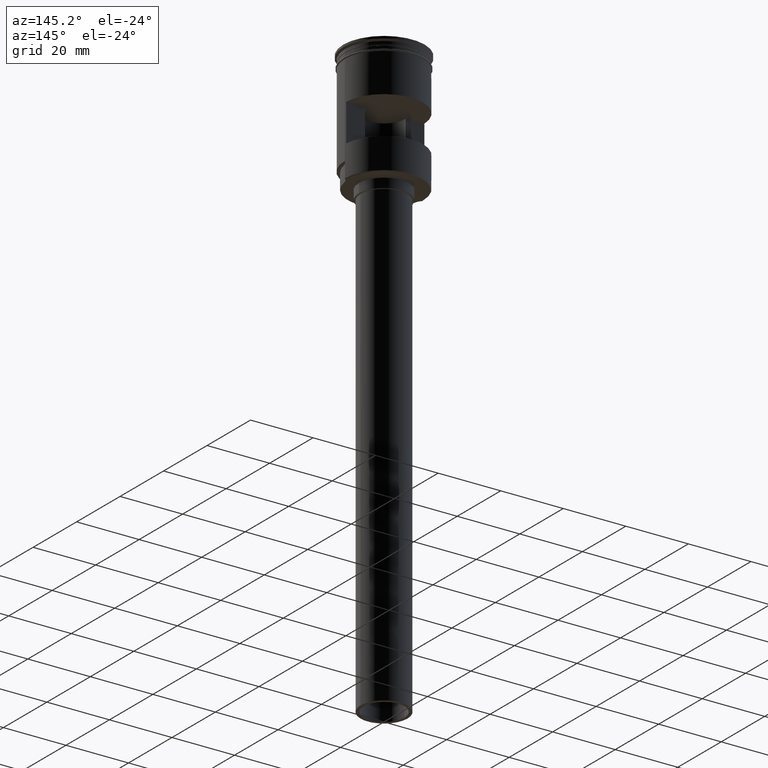
[diagram: clean part render]
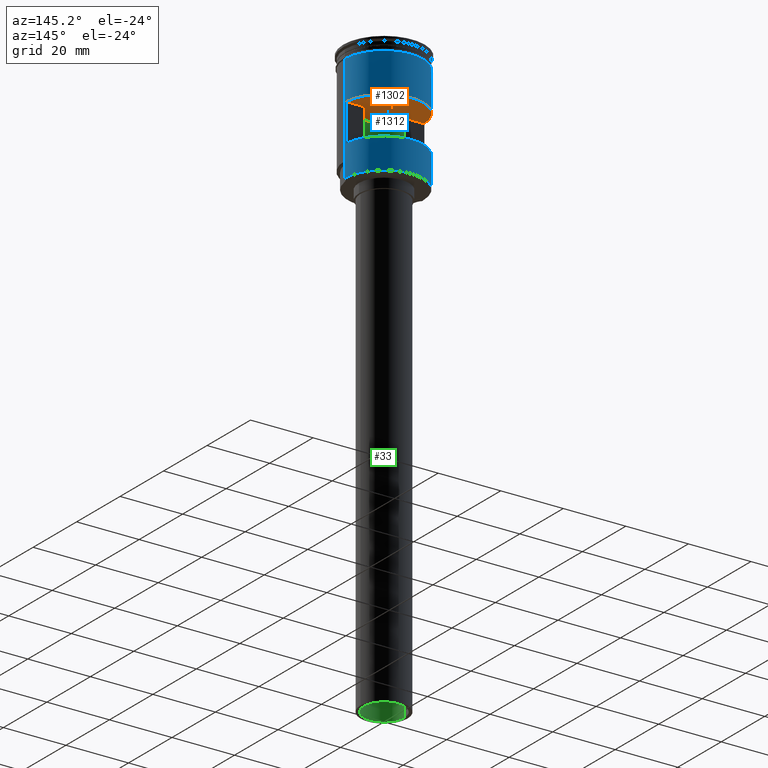
[diagram: same view with three faces highlighted in distinct colors, each labeled with its STEP entity id]
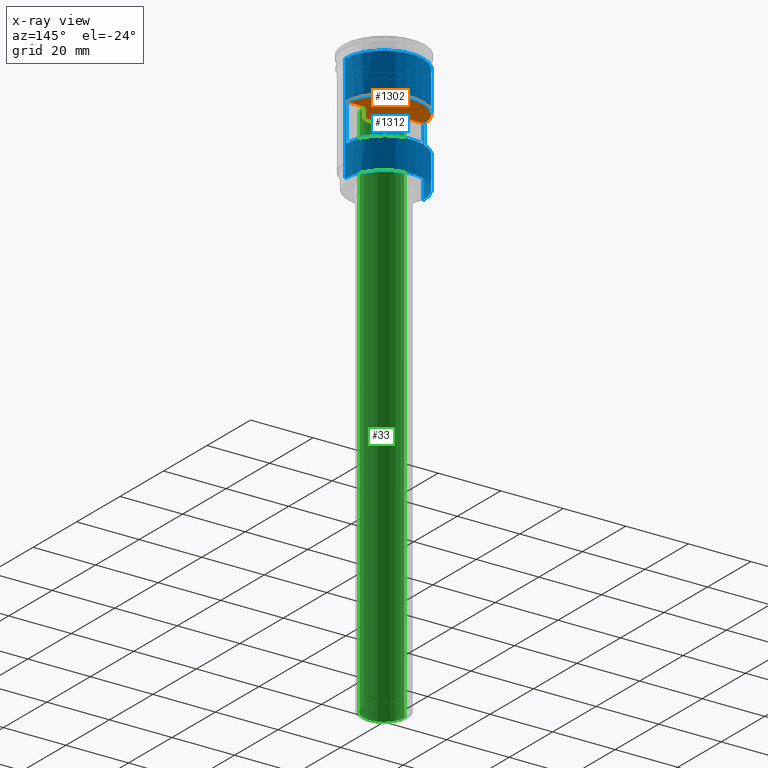
[diagram: x-ray of the same camera — body ghosted, the three highlighted faces saturated]
A machine part, auxiliary view with three faces highlighted in distinct colors.
The next image is the same camera in x-ray (body ghosted, the three faces saturated) — at least one of them is partly hidden behind the body in this view.
Their STEP definitions:

[orange] entity #1302 — the highlighted planar face has unit normal (0, -0, 1).
#40 = AXIS2_PLACEMENT_3D ( 'NONE', #961, #363, #1484 ) ;
#127 = VERTEX_POINT ( 'NONE', #1060 ) ;
#145 = VERTEX_POINT ( 'NONE', #1274 ) ;
#147 = DIRECTION ( 'NONE',  ( 1.000000000000000000, 0.000000000000000000, 0.000000000000000000 ) ) ;
#155 = DIRECTION ( 'NONE',  ( 1.000000000000000000, -0.000000000000000000, -0.000000000000000000 ) ) ;
#172 = LINE ( 'NONE', #901, #1307 ) ;
#236 = CARTESIAN_POINT ( 'NONE',  ( -13.00000000000000178, 0.6000000000000003109, -16.50000000000000000 ) ) ;
#240 = CARTESIAN_POINT ( 'NONE',  ( 0.000000000000000000, 0.000000000000000000, -16.50000000000000000 ) ) ;
#246 = VERTEX_POINT ( 'NONE', #909 ) ;
#276 = CARTESIAN_POINT ( 'NONE',  ( 0.000000000000000000, 0.000000000000000000, -16.50000000000000000 ) ) ;
#363 = DIRECTION ( 'NONE',  ( -0.000000000000000000, 0.000000000000000000, -1.000000000000000000 ) ) ;
#377 = AXIS2_PLACEMENT_3D ( 'NONE', #1381, #1471, #1012 ) ;
#393 = DIRECTION ( 'NONE',  ( 1.000000000000000000, 0.000000000000000000, 0.000000000000000000 ) ) ;
#396 = FACE_OUTER_BOUND ( 'NONE', #1223, .T. ) ;
#476 = CIRCLE ( 'NONE', #1494, 6.500000000000000888 ) ;
#477 = ORIENTED_EDGE ( 'NONE', *, *, #704, .T. ) ;
#503 = CARTESIAN_POINT ( 'NONE',  ( -6.500000000000000888, 0.000000000000000000, -16.50000000000000000 ) ) ;
#525 = ORIENTED_EDGE ( 'NONE', *, *, #806, .F. ) ;
#533 = CIRCLE ( 'NONE', #585, 6.500000000000000888 ) ;
#585 = AXIS2_PLACEMENT_3D ( 'NONE', #276, #1289, #393 ) ;
#629 = PLANE ( 'NONE',  #377 ) ;
#630 = VERTEX_POINT ( 'NONE', #1003 ) ;
#655 = VERTEX_POINT ( 'NONE', #503 ) ;
#663 = ORIENTED_EDGE ( 'NONE', *, *, #923, .T. ) ;
#681 = CIRCLE ( 'NONE', #1021, 12.49999999999999645 ) ;
#704 = EDGE_CURVE ( 'NONE', #655, #145, #1594, .T. ) ;
#729 = CARTESIAN_POINT ( 'NONE',  ( 6.472248450113761820, 0.6000000000000003109, -16.50000000000000000 ) ) ;
#750 = EDGE_CURVE ( 'NONE', #127, #145, #1346, .T. ) ;
#776 = EDGE_CURVE ( 'NONE', #1137, #246, #533, .T. ) ;
#806 = EDGE_CURVE ( 'NONE', #1137, #630, #172, .T. ) ;
#814 = ORIENTED_EDGE ( 'NONE', *, *, #750, .F. ) ;
#824 = DIRECTION ( 'NONE',  ( -0.000000000000000000, 0.000000000000000000, -1.000000000000000000 ) ) ;
#890 = DIRECTION ( 'NONE',  ( -0.000000000000000000, 0.000000000000000000, -1.000000000000000000 ) ) ;
#901 = CARTESIAN_POINT ( 'NONE',  ( -13.00000000000000178, 0.6000000000000003109, -16.50000000000000000 ) ) ;
#909 = CARTESIAN_POINT ( 'NONE',  ( 6.500000000000000888, 7.960204194457794491E-16, -16.50000000000000000 ) ) ;
#923 = EDGE_CURVE ( 'NONE', #246, #655, #476, .T. ) ;
#961 = CARTESIAN_POINT ( 'NONE',  ( 0.000000000000000000, 0.000000000000000000, -16.50000000000000000 ) ) ;
#1003 = CARTESIAN_POINT ( 'NONE',  ( 12.48559169603106689, 0.6000000000000003109, -16.50000000000000000 ) ) ;
#1012 = DIRECTION ( 'NONE',  ( 1.000000000000000000, 0.000000000000000000, -0.000000000000000000 ) ) ;
#1021 = AXIS2_PLACEMENT_3D ( 'NONE', #240, #890, #147 ) ;
#1024 = VECTOR ( 'NONE', #1598, 1000.000000000000000 ) ;
#1060 = CARTESIAN_POINT ( 'NONE',  ( -12.48559169603106689, 0.6000000000000003109, -16.50000000000000000 ) ) ;
#1068 = DIRECTION ( 'NONE',  ( 1.000000000000000000, 0.000000000000000000, 0.000000000000000000 ) ) ;
#1137 = VERTEX_POINT ( 'NONE', #729 ) ;
#1173 = ORIENTED_EDGE ( 'NONE', *, *, #1374, .T. ) ;
#1223 = EDGE_LOOP ( 'NONE', ( #525, #1482, #663, #477, #814, #1173 ) ) ;
#1274 = CARTESIAN_POINT ( 'NONE',  ( -6.472248450113763596, 0.6000000000000004219, -16.50000000000000000 ) ) ;
#1289 = DIRECTION ( 'NONE',  ( -0.000000000000000000, 0.000000000000000000, -1.000000000000000000 ) ) ;
#1302 = ADVANCED_FACE ( 'NONE', ( #396 ), #629, .F. ) ;
#1307 = VECTOR ( 'NONE', #155, 1000.000000000000000 ) ;
#1346 = LINE ( 'NONE', #236, #1024 ) ;
#1374 = EDGE_CURVE ( 'NONE', #127, #630, #681, .T. ) ;
#1381 = CARTESIAN_POINT ( 'NONE',  ( -13.00000000000000178, 0.6000000000000003109, -16.50000000000000000 ) ) ;
#1413 = CARTESIAN_POINT ( 'NONE',  ( 0.000000000000000000, 0.000000000000000000, -16.50000000000000000 ) ) ;
#1471 = DIRECTION ( 'NONE',  ( 0.000000000000000000, -0.000000000000000000, 1.000000000000000000 ) ) ;
#1482 = ORIENTED_EDGE ( 'NONE', *, *, #776, .T. ) ;
#1484 = DIRECTION ( 'NONE',  ( 1.000000000000000000, 0.000000000000000000, 0.000000000000000000 ) ) ;
#1494 = AXIS2_PLACEMENT_3D ( 'NONE', #1413, #824, #1068 ) ;
#1594 = CIRCLE ( 'NONE', #40, 6.500000000000000888 ) ;
#1598 = DIRECTION ( 'NONE',  ( 1.000000000000000000, -0.000000000000000000, -0.000000000000000000 ) ) ;

[blue] entity #1312 — the highlighted cylindrical surface (partial cylindrical patch) has radius 12.5 mm, axis along (-0, -0, 1).
#11 = ORIENTED_EDGE ( 'NONE', *, *, #420, .T. ) ;
#12 = CARTESIAN_POINT ( 'NONE',  ( 0.000000000000000000, 0.000000000000000000, -38.29999999999996874 ) ) ;
#25 = LINE ( 'NONE', #745, #582 ) ;
#35 = CARTESIAN_POINT ( 'NONE',  ( 12.49999999999999289, 1.530808498934190732E-15, -38.50000000000000000 ) ) ;
#36 = VECTOR ( 'NONE', #1071, 1000.000000000000000 ) ;
#42 = ORIENTED_EDGE ( 'NONE', *, *, #1075, .F. ) ;
#72 = VERTEX_POINT ( 'NONE', #1444 ) ;
#127 = VERTEX_POINT ( 'NONE', #1060 ) ;
#147 = DIRECTION ( 'NONE',  ( 1.000000000000000000, 0.000000000000000000, 0.000000000000000000 ) ) ;
#200 = VERTEX_POINT ( 'NONE', #1540 ) ;
#240 = CARTESIAN_POINT ( 'NONE',  ( 0.000000000000000000, 0.000000000000000000, -16.50000000000000000 ) ) ;
#252 = ORIENTED_EDGE ( 'NONE', *, *, #1386, .F. ) ;
#265 = CYLINDRICAL_SURFACE ( 'NONE', #656, 12.49999999999999645 ) ;
#270 = CARTESIAN_POINT ( 'NONE',  ( 12.49999999999999289, 1.530808498934190732E-15, -38.29999999999996874 ) ) ;
#275 = EDGE_CURVE ( 'NONE', #1036, #742, #1562, .T. ) ;
#337 = CARTESIAN_POINT ( 'NONE',  ( 12.48559169603106689, 0.6000000000000003109, -28.49999999999999645 ) ) ;
#341 = LINE ( 'NONE', #576, #36 ) ;
#345 = CARTESIAN_POINT ( 'NONE',  ( -12.48559169603106689, 0.6000000000000003109, 0.000000000000000000 ) ) ;
#355 = ORIENTED_EDGE ( 'NONE', *, *, #1374, .F. ) ;
#361 = LINE ( 'NONE', #345, #1587 ) ;
#362 = ORIENTED_EDGE ( 'NONE', *, *, #1591, .F. ) ;
#371 = CARTESIAN_POINT ( 'NONE',  ( -12.49999999999999289, 0.000000000000000000, -38.29999999999996874 ) ) ;
#420 = EDGE_CURVE ( 'NONE', #483, #574, #1565, .T. ) ;
#425 = VECTOR ( 'NONE', #1396, 1000.000000000000000 ) ;
#439 = VERTEX_POINT ( 'NONE', #620 ) ;
#453 = ORIENTED_EDGE ( 'NONE', *, *, #1503, .T. ) ;
#483 = VERTEX_POINT ( 'NONE', #270 ) ;
#574 = VERTEX_POINT ( 'NONE', #371 ) ;
#576 = CARTESIAN_POINT ( 'NONE',  ( 12.48559169603106689, 0.6000000000000003109, 0.000000000000000000 ) ) ;
#580 = DIRECTION ( 'NONE',  ( 1.000000000000000000, 0.000000000000000000, 0.000000000000000000 ) ) ;
#582 = VECTOR ( 'NONE', #1109, 1000.000000000000000 ) ;
#588 = CARTESIAN_POINT ( 'NONE',  ( 0.000000000000000000, 0.000000000000000000, -28.49999999999999645 ) ) ;
#620 = CARTESIAN_POINT ( 'NONE',  ( -12.50000000000000000, 1.530808498934191521E-15, -3.999999999999996447 ) ) ;
#630 = VERTEX_POINT ( 'NONE', #1003 ) ;
#634 = AXIS2_PLACEMENT_3D ( 'NONE', #588, #703, #1095 ) ;
#647 = DIRECTION ( 'NONE',  ( 1.000000000000000000, 0.000000000000000000, 0.000000000000000000 ) ) ;
#650 = EDGE_LOOP ( 'NONE', ( #362, #355, #42, #1078 ) ) ;
#656 = AXIS2_PLACEMENT_3D ( 'NONE', #1368, #1480, #647 ) ;
#673 = DIRECTION ( 'NONE',  ( -0.000000000000000000, -0.000000000000000000, 1.000000000000000000 ) ) ;
#676 = CARTESIAN_POINT ( 'NONE',  ( 12.49999999999999645, 1.530808498934191127E-15, -33.29999999999998295 ) ) ;
#681 = CIRCLE ( 'NONE', #1021, 12.49999999999999645 ) ;
#703 = DIRECTION ( 'NONE',  ( 0.000000000000000000, 0.000000000000000000, 1.000000000000000000 ) ) ;
#722 = EDGE_LOOP ( 'NONE', ( #453, #1249, #1412, #252, #1583, #11 ) ) ;
#742 = VERTEX_POINT ( 'NONE', #854 ) ;
#745 = CARTESIAN_POINT ( 'NONE',  ( 12.49999999999999645, 0.000000000000000000, 0.000000000000000000 ) ) ;
#784 = VECTOR ( 'NONE', #1533, 1000.000000000000000 ) ;
#796 = CARTESIAN_POINT ( 'NONE',  ( -12.49999999999999289, 0.000000000000000000, -38.50000000000000000 ) ) ;
#839 = VECTOR ( 'NONE', #673, 1000.000000000000000 ) ;
#853 = DIRECTION ( 'NONE',  ( -0.000000000000000000, -0.000000000000000000, 1.000000000000000000 ) ) ;
#854 = CARTESIAN_POINT ( 'NONE',  ( -12.48559169603106689, 0.6000000000000003109, -28.49999999999999645 ) ) ;
#866 = FACE_OUTER_BOUND ( 'NONE', #722, .T. ) ;
#890 = DIRECTION ( 'NONE',  ( -0.000000000000000000, 0.000000000000000000, -1.000000000000000000 ) ) ;
#906 = EDGE_CURVE ( 'NONE', #200, #439, #1420, .T. ) ;
#936 = CARTESIAN_POINT ( 'NONE',  ( 0.000000000000000000, 0.000000000000000000, -3.999999999999996447 ) ) ;
#943 = DIRECTION ( 'NONE',  ( -0.000000000000000000, -0.000000000000000000, 1.000000000000000000 ) ) ;
#1003 = CARTESIAN_POINT ( 'NONE',  ( 12.48559169603106689, 0.6000000000000003109, -16.50000000000000000 ) ) ;
#1010 = VERTEX_POINT ( 'NONE', #676 ) ;
#1021 = AXIS2_PLACEMENT_3D ( 'NONE', #240, #890, #147 ) ;
#1036 = VERTEX_POINT ( 'NONE', #337 ) ;
#1060 = CARTESIAN_POINT ( 'NONE',  ( -12.48559169603106689, 0.6000000000000003109, -16.50000000000000000 ) ) ;
#1071 = DIRECTION ( 'NONE',  ( 0.000000000000000000, 0.000000000000000000, -1.000000000000000000 ) ) ;
#1075 = EDGE_CURVE ( 'NONE', #742, #127, #361, .T. ) ;
#1078 = ORIENTED_EDGE ( 'NONE', *, *, #275, .F. ) ;
#1095 = DIRECTION ( 'NONE',  ( -1.000000000000000000, 0.000000000000000000, 0.000000000000000000 ) ) ;
#1102 = AXIS2_PLACEMENT_3D ( 'NONE', #12, #1236, #1486 ) ;
#1109 = DIRECTION ( 'NONE',  ( -0.000000000000000000, -0.000000000000000000, 1.000000000000000000 ) ) ;
#1156 = LINE ( 'NONE', #35, #425 ) ;
#1169 = LINE ( 'NONE', #796, #839 ) ;
#1182 = CARTESIAN_POINT ( 'NONE',  ( -12.49999999999999645, 1.530808498934191127E-15, 0.000000000000000000 ) ) ;
#1236 = DIRECTION ( 'NONE',  ( 0.000000000000000000, 0.000000000000000000, 1.000000000000000000 ) ) ;
#1249 = ORIENTED_EDGE ( 'NONE', *, *, #906, .T. ) ;
#1263 = EDGE_CURVE ( 'NONE', #72, #439, #1510, .T. ) ;
#1312 = ADVANCED_FACE ( 'NONE', ( #1349, #866 ), #265, .T. ) ;
#1331 = AXIS2_PLACEMENT_3D ( 'NONE', #936, #943, #580 ) ;
#1349 = FACE_BOUND ( 'NONE', #650, .T. ) ;
#1368 = CARTESIAN_POINT ( 'NONE',  ( 0.000000000000000000, 0.000000000000000000, 0.000000000000000000 ) ) ;
#1374 = EDGE_CURVE ( 'NONE', #127, #630, #681, .T. ) ;
#1386 = EDGE_CURVE ( 'NONE', #1010, #72, #25, .T. ) ;
#1396 = DIRECTION ( 'NONE',  ( -0.000000000000000000, -0.000000000000000000, 1.000000000000000000 ) ) ;
#1412 = ORIENTED_EDGE ( 'NONE', *, *, #1263, .F. ) ;
#1420 = LINE ( 'NONE', #1182, #784 ) ;
#1444 = CARTESIAN_POINT ( 'NONE',  ( 12.49999999999999822, 0.000000000000000000, -3.999999999999996447 ) ) ;
#1480 = DIRECTION ( 'NONE',  ( -0.000000000000000000, -0.000000000000000000, 1.000000000000000000 ) ) ;
#1486 = DIRECTION ( 'NONE',  ( -1.000000000000000000, 0.000000000000000000, 0.000000000000000000 ) ) ;
#1503 = EDGE_CURVE ( 'NONE', #574, #200, #1169, .T. ) ;
#1510 = CIRCLE ( 'NONE', #1331, 12.49999999999999822 ) ;
#1533 = DIRECTION ( 'NONE',  ( -0.000000000000000000, -0.000000000000000000, 1.000000000000000000 ) ) ;
#1539 = EDGE_CURVE ( 'NONE', #483, #1010, #1156, .T. ) ;
#1540 = CARTESIAN_POINT ( 'NONE',  ( -12.49999999999999289, 0.000000000000000000, -33.29999999999998295 ) ) ;
#1562 = CIRCLE ( 'NONE', #634, 12.49999999999999645 ) ;
#1565 = CIRCLE ( 'NONE', #1102, 12.49999999999999645 ) ;
#1583 = ORIENTED_EDGE ( 'NONE', *, *, #1539, .F. ) ;
#1587 = VECTOR ( 'NONE', #853, 1000.000000000000000 ) ;
#1591 = EDGE_CURVE ( 'NONE', #630, #1036, #341, .T. ) ;

[green] entity #33 — the highlighted cylindrical surface (edge-blend (fillet) strip) has radius 6.5 mm, axis along (-0, -0, -1).
#33 = ADVANCED_FACE ( 'NONE', ( #710 ), #458, .F. ) ;
#91 = DIRECTION ( 'NONE',  ( -0.000000000000000000, -0.000000000000000000, -1.000000000000000000 ) ) ;
#171 = EDGE_LOOP ( 'NONE', ( #695, #317, #405, #820 ) ) ;
#195 = LINE ( 'NONE', #964, #609 ) ;
#246 = VERTEX_POINT ( 'NONE', #909 ) ;
#317 = ORIENTED_EDGE ( 'NONE', *, *, #1571, .T. ) ;
#350 = AXIS2_PLACEMENT_3D ( 'NONE', #949, #1192, #690 ) ;
#369 = VERTEX_POINT ( 'NONE', #696 ) ;
#394 = EDGE_CURVE ( 'NONE', #369, #899, #1152, .T. ) ;
#405 = ORIENTED_EDGE ( 'NONE', *, *, #394, .T. ) ;
#438 = EDGE_CURVE ( 'NONE', #655, #899, #1227, .T. ) ;
#458 = CYLINDRICAL_SURFACE ( 'NONE', #706, 6.500000000000000888 ) ;
#476 = CIRCLE ( 'NONE', #1494, 6.500000000000000888 ) ;
#503 = CARTESIAN_POINT ( 'NONE',  ( -6.500000000000000888, 0.000000000000000000, -16.50000000000000000 ) ) ;
#609 = VECTOR ( 'NONE', #91, 1000.000000000000000 ) ;
#655 = VERTEX_POINT ( 'NONE', #503 ) ;
#690 = DIRECTION ( 'NONE',  ( -1.000000000000000000, 0.000000000000000000, 0.000000000000000000 ) ) ;
#695 = ORIENTED_EDGE ( 'NONE', *, *, #923, .F. ) ;
#696 = CARTESIAN_POINT ( 'NONE',  ( 6.500000000000000888, 7.960204194457794491E-16, -188.5000000000000000 ) ) ;
#700 = DIRECTION ( 'NONE',  ( -0.000000000000000000, -0.000000000000000000, -1.000000000000000000 ) ) ;
#706 = AXIS2_PLACEMENT_3D ( 'NONE', #807, #700, #1310 ) ;
#710 = FACE_OUTER_BOUND ( 'NONE', #171, .T. ) ;
#733 = CARTESIAN_POINT ( 'NONE',  ( -6.500000000000000888, 0.000000000000000000, 1.884776310850211356 ) ) ;
#741 = VECTOR ( 'NONE', #749, 1000.000000000000000 ) ;
#749 = DIRECTION ( 'NONE',  ( -0.000000000000000000, -0.000000000000000000, -1.000000000000000000 ) ) ;
#807 = CARTESIAN_POINT ( 'NONE',  ( 0.000000000000000000, 0.000000000000000000, 1.884776310850211356 ) ) ;
#820 = ORIENTED_EDGE ( 'NONE', *, *, #438, .F. ) ;
#824 = DIRECTION ( 'NONE',  ( -0.000000000000000000, 0.000000000000000000, -1.000000000000000000 ) ) ;
#899 = VERTEX_POINT ( 'NONE', #1271 ) ;
#909 = CARTESIAN_POINT ( 'NONE',  ( 6.500000000000000888, 7.960204194457794491E-16, -16.50000000000000000 ) ) ;
#923 = EDGE_CURVE ( 'NONE', #246, #655, #476, .T. ) ;
#949 = CARTESIAN_POINT ( 'NONE',  ( 0.000000000000000000, 0.000000000000000000, -188.5000000000000000 ) ) ;
#964 = CARTESIAN_POINT ( 'NONE',  ( 6.500000000000000888, 7.960204194457794491E-16, 1.884776310850211356 ) ) ;
#1068 = DIRECTION ( 'NONE',  ( 1.000000000000000000, 0.000000000000000000, 0.000000000000000000 ) ) ;
#1152 = CIRCLE ( 'NONE', #350, 6.500000000000000888 ) ;
#1192 = DIRECTION ( 'NONE',  ( 0.000000000000000000, 0.000000000000000000, -1.000000000000000000 ) ) ;
#1227 = LINE ( 'NONE', #733, #741 ) ;
#1271 = CARTESIAN_POINT ( 'NONE',  ( -6.500000000000000888, 0.000000000000000000, -188.5000000000000000 ) ) ;
#1310 = DIRECTION ( 'NONE',  ( -1.000000000000000000, 0.000000000000000000, 0.000000000000000000 ) ) ;
#1413 = CARTESIAN_POINT ( 'NONE',  ( 0.000000000000000000, 0.000000000000000000, -16.50000000000000000 ) ) ;
#1494 = AXIS2_PLACEMENT_3D ( 'NONE', #1413, #824, #1068 ) ;
#1571 = EDGE_CURVE ( 'NONE', #246, #369, #195, .T. ) ;